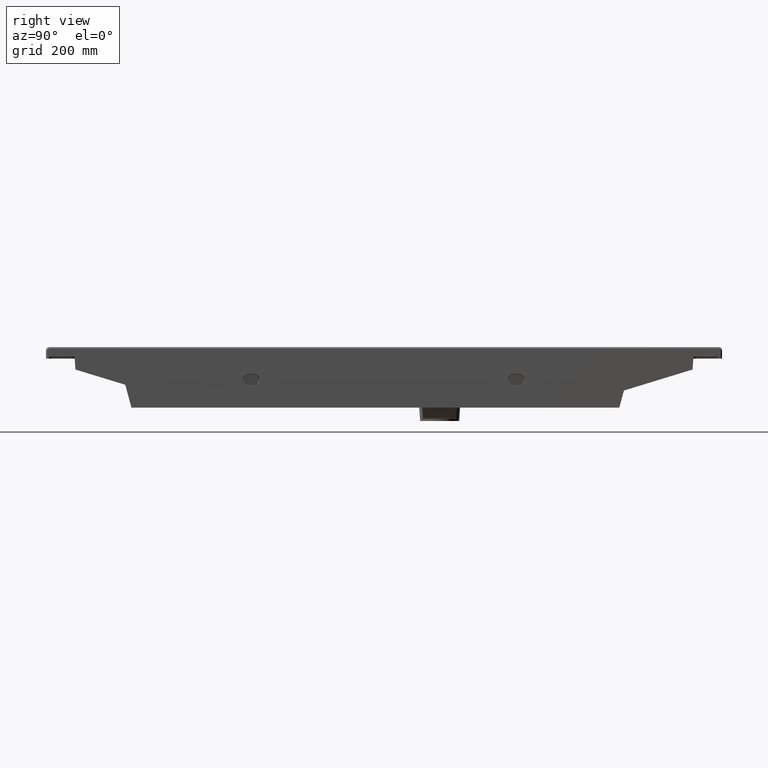
[diagram: clean part render]
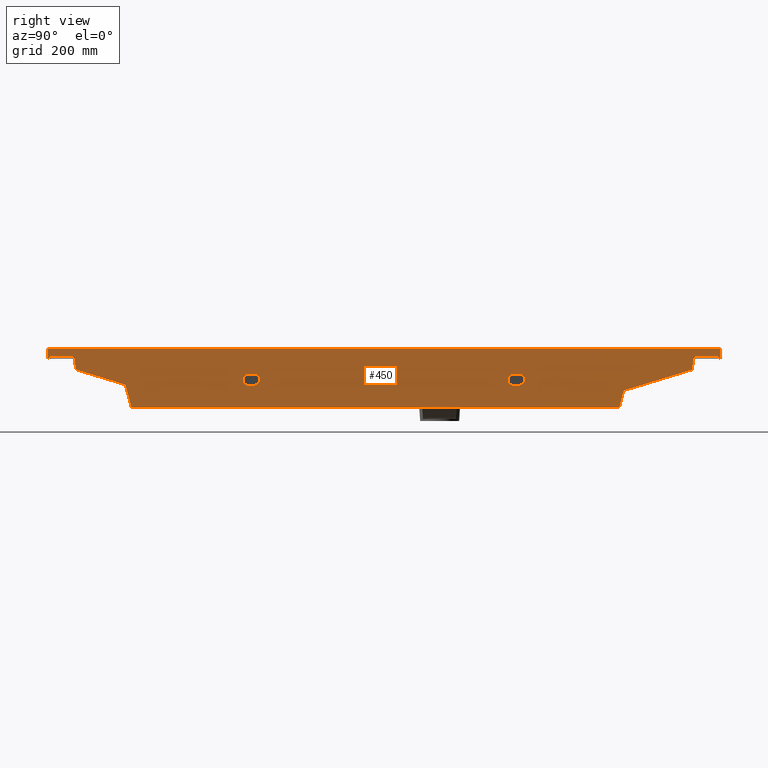
[diagram: same view with one face highlighted and labeled with its STEP entity id]
A machine part, right view. The second image highlights one B-rep face of the part: STEP entity #450.
In plain terms, the highlighted face is a freeform B-spline surface patch.
Its self-contained STEP definition (entity closure, byte-faithful):
#227=B_SPLINE_SURFACE_WITH_KNOTS('',3,3,((#4912,#4913,#4914,#4915),(#4916,
#4917,#4918,#4919),(#4920,#4921,#4922,#4923),(#4924,#4925,#4926,#4927)),
 .UNSPECIFIED.,.F.,.F.,.F.,(4,4),(4,4),(0.,1.),(0.,1.),.UNSPECIFIED.);
#450=ADVANCED_FACE('',(#639,#640,#641),#227,.T.);
#639=FACE_BOUND('',#712,.T.);
#640=FACE_BOUND('',#713,.T.);
#641=FACE_BOUND('',#714,.T.);
#712=EDGE_LOOP('',(#1288,#1289,#1290,#1291,#1292,#1293,#1294,#1295,#1296,
#1297,#1298,#1299,#1300,#1301,#1302,#1303,#1304,#1305,#1306,#1307,#1308,
#1309));
#713=EDGE_LOOP('',(#1310,#1311,#1312,#1313));
#714=EDGE_LOOP('',(#1314,#1315,#1316,#1317));
#840=B_SPLINE_CURVE_WITH_KNOTS('',3,(#3313,#3314,#3315,#3316),
 .UNSPECIFIED.,.F.,.F.,(4,4),(0.,1.),.UNSPECIFIED.);
#848=B_SPLINE_CURVE_WITH_KNOTS('',3,(#3425,#3426,#3427,#3428),
 .UNSPECIFIED.,.F.,.F.,(4,4),(0.,1.),.UNSPECIFIED.);
#860=B_SPLINE_CURVE_WITH_KNOTS('',3,(#3553,#3554,#3555,#3556,#3557,#3558,
#3559,#3560,#3561,#3562),.UNSPECIFIED.,.F.,.F.,(4,2,2,2,4),(0.,0.25,0.5,
0.75,1.),.UNSPECIFIED.);
#861=B_SPLINE_CURVE_WITH_KNOTS('',3,(#3572,#3573,#3574,#3575,#3576,#3577,
#3578),.UNSPECIFIED.,.F.,.F.,(4,3,4),(0.,0.500000000000011,1.),
 .UNSPECIFIED.);
#862=B_SPLINE_CURVE_WITH_KNOTS('',3,(#3582,#3583,#3584,#3585,#3586,#3587,
#3588,#3589,#3590,#3591),.UNSPECIFIED.,.F.,.F.,(4,2,2,2,4),(0.,0.25,0.500000000000001,
0.75,1.),.UNSPECIFIED.);
#863=B_SPLINE_CURVE_WITH_KNOTS('',3,(#3601,#3602,#3603,#3604,#3605,#3606,
#3607),.UNSPECIFIED.,.F.,.F.,(4,3,4),(0.,0.499999999999983,1.),
 .UNSPECIFIED.);
#866=B_SPLINE_CURVE_WITH_KNOTS('',3,(#3653,#3654,#3655,#3656),
 .UNSPECIFIED.,.F.,.F.,(4,4),(0.,1.),.UNSPECIFIED.);
#869=B_SPLINE_CURVE_WITH_KNOTS('',3,(#3672,#3673,#3674,#3675),
 .UNSPECIFIED.,.F.,.F.,(4,4),(0.,1.),.UNSPECIFIED.);
#888=B_SPLINE_CURVE_WITH_KNOTS('',3,(#4025,#4026,#4027,#4028,#4029,#4030,
#4031),.UNSPECIFIED.,.F.,.F.,(4,3,4),(0.,0.488515722123736,1.),
 .UNSPECIFIED.);
#906=B_SPLINE_CURVE_WITH_KNOTS('',3,(#4269,#4270,#4271,#4272,#4273,#4274,
#4275),.UNSPECIFIED.,.F.,.F.,(4,3,4),(0.,0.487471422957447,1.),
 .UNSPECIFIED.);
#907=B_SPLINE_CURVE_WITH_KNOTS('',3,(#4288,#4289,#4290,#4291,#4292,#4293,
#4294),.UNSPECIFIED.,.F.,.F.,(4,3,4),(0.,0.512528577394349,1.),
 .UNSPECIFIED.);
#932=B_SPLINE_CURVE_WITH_KNOTS('',3,(#4649,#4650,#4651,#4652),
 .UNSPECIFIED.,.F.,.F.,(4,4),(0.,1.),.UNSPECIFIED.);
#936=B_SPLINE_CURVE_WITH_KNOTS('',3,(#4702,#4703,#4704,#4705,#4706,#4707,
#4708),.UNSPECIFIED.,.F.,.F.,(4,3,4),(0.,0.399994232879755,1.),
 .UNSPECIFIED.);
#937=B_SPLINE_CURVE_WITH_KNOTS('',3,(#4710,#4711,#4712,#4713,#4714,#4715,
#4716,#4717,#4718,#4719,#4720,#4721,#4722,#4723,#4724,#4725),
 .UNSPECIFIED.,.F.,.F.,(4,3,3,3,3,4),(0.,0.214940545334537,0.429881090683832,
0.644821635798407,0.859762180407643,1.),.UNSPECIFIED.);
#938=B_SPLINE_CURVE_WITH_KNOTS('',3,(#4727,#4728,#4729,#4730,#4731,#4732,
#4733,#4734,#4735,#4736,#4737,#4738,#4739,#4740,#4741,#4742),
 .UNSPECIFIED.,.F.,.F.,(4,3,3,3,3,4),(0.,0.00499081544996495,0.0249540772498247,
0.104807124449264,0.42421931324702,1.),.UNSPECIFIED.);
#939=B_SPLINE_CURVE_WITH_KNOTS('',3,(#4744,#4745,#4746,#4747,#4748,#4749,
#4750,#4751,#4752,#4753,#4754,#4755,#4756,#4757,#4758,#4759),
 .UNSPECIFIED.,.F.,.F.,(4,3,3,3,3,4),(0.,0.214940544026423,0.429881088038044,
0.644821632284398,0.859762177036083,1.),.UNSPECIFIED.);
#940=B_SPLINE_CURVE_WITH_KNOTS('',3,(#4761,#4762,#4763,#4764,#4765,#4766,
#4767),.UNSPECIFIED.,.F.,.F.,(4,3,4),(0.,0.399994232879754,1.),
 .UNSPECIFIED.);
#941=B_SPLINE_CURVE_WITH_KNOTS('',3,(#4768,#4769,#4770,#4771,#4772,#4773,
#4774,#4775,#4776,#4777,#4778,#4779,#4780,#4781,#4782,#4783),
 .UNSPECIFIED.,.F.,.F.,(4,3,3,3,3,4),(0.,0.227574531575097,0.45514906315938,
0.682723594584448,0.910298125508705,1.),.UNSPECIFIED.);
#942=B_SPLINE_CURVE_WITH_KNOTS('',3,(#4784,#4785,#4786,#4787,#4788,#4789,
#4790,#4791,#4792,#4793,#4794,#4795,#4796,#4797,#4798,#4799),
 .UNSPECIFIED.,.F.,.F.,(4,3,3,3,3,4),(0.,0.22493801690343,0.449876033791416,
0.674814050925029,0.899752068587476,1.),.UNSPECIFIED.);
#943=B_SPLINE_CURVE_WITH_KNOTS('',3,(#4801,#4802,#4803,#4804,#4805,#4806,
#4807),.UNSPECIFIED.,.F.,.F.,(4,3,4),(0.,0.406023384226264,1.),
 .UNSPECIFIED.);
#944=B_SPLINE_CURVE_WITH_KNOTS('',3,(#4809,#4810,#4811,#4812,#4813,#4814,
#4815),.UNSPECIFIED.,.F.,.F.,(4,3,4),(0.,0.406544752498143,1.),
 .UNSPECIFIED.);
#945=B_SPLINE_CURVE_WITH_KNOTS('',3,(#4817,#4818,#4819,#4820,#4821,#4822,
#4823),.UNSPECIFIED.,.F.,.F.,(4,3,4),(0.,0.500006351623453,1.),
 .UNSPECIFIED.);
#946=B_SPLINE_CURVE_WITH_KNOTS('',3,(#4824,#4825,#4826,#4827,#4828,#4829,
#4830),.UNSPECIFIED.,.F.,.F.,(4,3,4),(0.,0.499991523264634,1.),
 .UNSPECIFIED.);
#947=B_SPLINE_CURVE_WITH_KNOTS('',3,(#4832,#4833,#4834,#4835,#4836,#4837,
#4838,#4839,#4840,#4841),.UNSPECIFIED.,.F.,.F.,(4,3,3,4),(0.,0.222545476930106,
0.5934554680145,1.),.UNSPECIFIED.);
#948=B_SPLINE_CURVE_WITH_KNOTS('',3,(#4842,#4843,#4844,#4845,#4846,#4847,
#4848,#4849,#4850,#4851,#4852,#4853,#4854,#4855,#4856,#4857),
 .UNSPECIFIED.,.F.,.F.,(4,3,3,3,3,4),(0.,0.224938018206358,0.449876036431116,
0.674814054369482,0.899752071765122,1.),.UNSPECIFIED.);
#949=B_SPLINE_CURVE_WITH_KNOTS('',3,(#4858,#4859,#4860,#4861,#4862,#4863,
#4864,#4865,#4866,#4867,#4868,#4869,#4870,#4871,#4872,#4873),
 .UNSPECIFIED.,.F.,.F.,(4,3,3,3,3,4),(0.,0.227574530292882,0.455149060560492,
0.682723591209023,0.910298122428115,1.),.UNSPECIFIED.);
#950=B_SPLINE_CURVE_WITH_KNOTS('',3,(#4874,#4875,#4876,#4877,#4878,#4879,
#4880),.UNSPECIFIED.,.F.,.F.,(4,3,4),(0.,0.500000000000017,1.),
 .UNSPECIFIED.);
#951=B_SPLINE_CURVE_WITH_KNOTS('',3,(#4883,#4884,#4885,#4886,#4887,#4888,
#4889,#4890,#4891,#4892),.UNSPECIFIED.,.F.,.F.,(4,2,2,2,4),(0.,0.25,0.5,
0.75,1.),.UNSPECIFIED.);
#952=B_SPLINE_CURVE_WITH_KNOTS('',3,(#4894,#4895,#4896,#4897,#4898,#4899,
#4900),.UNSPECIFIED.,.F.,.F.,(4,3,4),(0.,0.499999999999999,1.),
 .UNSPECIFIED.);
#953=B_SPLINE_CURVE_WITH_KNOTS('',3,(#4902,#4903,#4904,#4905,#4906,#4907,
#4908,#4909,#4910,#4911),.UNSPECIFIED.,.F.,.F.,(4,2,2,2,4),(0.,0.25,0.499999999999999,
0.75,1.),.UNSPECIFIED.);
#1288=ORIENTED_EDGE('',*,*,#2090,.T.);
#1289=ORIENTED_EDGE('',*,*,#2227,.T.);
#1290=ORIENTED_EDGE('',*,*,#2228,.T.);
#1291=ORIENTED_EDGE('',*,*,#2229,.T.);
#1292=ORIENTED_EDGE('',*,*,#2230,.T.);
#1293=ORIENTED_EDGE('',*,*,#2231,.T.);
#1294=ORIENTED_EDGE('',*,*,#2094,.T.);
#1295=ORIENTED_EDGE('',*,*,#2058,.F.);
#1296=ORIENTED_EDGE('',*,*,#2232,.T.);
#1297=ORIENTED_EDGE('',*,*,#2167,.T.);
#1298=ORIENTED_EDGE('',*,*,#2233,.T.);
#1299=ORIENTED_EDGE('',*,*,#2234,.T.);
#1300=ORIENTED_EDGE('',*,*,#2235,.F.);
#1301=ORIENTED_EDGE('',*,*,#2236,.F.);
#1302=ORIENTED_EDGE('',*,*,#2208,.F.);
#1303=ORIENTED_EDGE('',*,*,#2237,.F.);
#1304=ORIENTED_EDGE('',*,*,#2238,.F.);
#1305=ORIENTED_EDGE('',*,*,#2135,.T.);
#1306=ORIENTED_EDGE('',*,*,#2239,.T.);
#1307=ORIENTED_EDGE('',*,*,#2161,.T.);
#1308=ORIENTED_EDGE('',*,*,#2240,.T.);
#1309=ORIENTED_EDGE('',*,*,#2050,.F.);
#1310=ORIENTED_EDGE('',*,*,#2084,.F.);
#1311=ORIENTED_EDGE('',*,*,#2082,.F.);
#1312=ORIENTED_EDGE('',*,*,#2080,.F.);
#1313=ORIENTED_EDGE('',*,*,#2078,.F.);
#1314=ORIENTED_EDGE('',*,*,#2241,.T.);
#1315=ORIENTED_EDGE('',*,*,#2242,.T.);
#1316=ORIENTED_EDGE('',*,*,#2243,.T.);
#1317=ORIENTED_EDGE('',*,*,#2244,.T.);
#1805=VERTEX_POINT('',#3317);
#1806=VERTEX_POINT('',#3318);
#1813=VERTEX_POINT('',#3424);
#1814=VERTEX_POINT('',#3429);
#1831=VERTEX_POINT('',#3552);
#1832=VERTEX_POINT('',#3563);
#1833=VERTEX_POINT('',#3579);
#1834=VERTEX_POINT('',#3592);
#1839=VERTEX_POINT('',#3652);
#1842=VERTEX_POINT('',#3676);
#1872=VERTEX_POINT('',#4024);
#1873=VERTEX_POINT('',#4032);
#1896=VERTEX_POINT('',#4276);
#1897=VERTEX_POINT('',#4277);
#1902=VERTEX_POINT('',#4287);
#1903=VERTEX_POINT('',#4295);
#1932=VERTEX_POINT('',#4653);
#1933=VERTEX_POINT('',#4654);
#1949=VERTEX_POINT('',#4709);
#1950=VERTEX_POINT('',#4726);
#1951=VERTEX_POINT('',#4743);
#1952=VERTEX_POINT('',#4760);
#1953=VERTEX_POINT('',#4800);
#1954=VERTEX_POINT('',#4808);
#1955=VERTEX_POINT('',#4816);
#1956=VERTEX_POINT('',#4831);
#1957=VERTEX_POINT('',#4881);
#1958=VERTEX_POINT('',#4882);
#1959=VERTEX_POINT('',#4893);
#1960=VERTEX_POINT('',#4901);
#2050=EDGE_CURVE('',#1805,#1806,#840,.T.);
#2058=EDGE_CURVE('',#1813,#1814,#848,.T.);
#2078=EDGE_CURVE('',#1831,#1832,#860,.T.);
#2080=EDGE_CURVE('',#1832,#1833,#861,.T.);
#2082=EDGE_CURVE('',#1833,#1834,#862,.T.);
#2084=EDGE_CURVE('',#1834,#1831,#863,.T.);
#2090=EDGE_CURVE('',#1805,#1839,#866,.T.);
#2094=EDGE_CURVE('',#1842,#1814,#869,.T.);
#2135=EDGE_CURVE('',#1873,#1872,#888,.T.);
#2161=EDGE_CURVE('',#1896,#1897,#906,.T.);
#2167=EDGE_CURVE('',#1903,#1902,#907,.T.);
#2208=EDGE_CURVE('',#1932,#1933,#932,.T.);
#2227=EDGE_CURVE('',#1839,#1949,#936,.T.);
#2228=EDGE_CURVE('',#1949,#1950,#937,.T.);
#2229=EDGE_CURVE('',#1950,#1951,#938,.T.);
#2230=EDGE_CURVE('',#1951,#1952,#939,.T.);
#2231=EDGE_CURVE('',#1952,#1842,#940,.T.);
#2232=EDGE_CURVE('',#1813,#1903,#941,.T.);
#2233=EDGE_CURVE('',#1902,#1953,#942,.T.);
#2234=EDGE_CURVE('',#1953,#1954,#943,.T.);
#2235=EDGE_CURVE('',#1955,#1954,#944,.T.);
#2236=EDGE_CURVE('',#1933,#1955,#945,.T.);
#2237=EDGE_CURVE('',#1956,#1932,#946,.T.);
#2238=EDGE_CURVE('',#1873,#1956,#947,.T.);
#2239=EDGE_CURVE('',#1872,#1896,#948,.T.);
#2240=EDGE_CURVE('',#1897,#1806,#949,.T.);
#2241=EDGE_CURVE('',#1957,#1958,#950,.T.);
#2242=EDGE_CURVE('',#1958,#1959,#951,.T.);
#2243=EDGE_CURVE('',#1959,#1960,#952,.T.);
#2244=EDGE_CURVE('',#1960,#1957,#953,.T.);
#3313=CARTESIAN_POINT('',(241.133348472529,622.842022748388,-21.0030697127266));
#3314=CARTESIAN_POINT('',(241.133333736482,622.805234685412,-20.582580231054));
#3315=CARTESIAN_POINT('',(241.133319000436,622.768446622428,-20.1620907493822));
#3316=CARTESIAN_POINT('',(241.13330426439,622.731658559452,-19.7416012677097));
#3317=CARTESIAN_POINT('',(241.133348472529,622.842022748388,-21.0030697127266));
#3318=CARTESIAN_POINT('',(241.13330426439,622.731658559452,-19.7416012677097));
#3424=CARTESIAN_POINT('',(241.133304264389,-580.731658587715,-19.7416012677104));
#3425=CARTESIAN_POINT('',(241.133304264389,-580.731658587715,-19.7416012677104));
#3426=CARTESIAN_POINT('',(241.133319000436,-580.768446650691,-20.1620907493825));
#3427=CARTESIAN_POINT('',(241.133333736482,-580.805234713668,-20.5825802310545));
#3428=CARTESIAN_POINT('',(241.133348472529,-580.842022776645,-21.0030697127266));
#3429=CARTESIAN_POINT('',(241.133348472529,-580.842022776645,-21.0030697127266));
#3552=CARTESIAN_POINT('',(241.134322750179,253.732961788461,-48.8038443527653));
#3553=CARTESIAN_POINT('',(241.134322750179,253.732961788461,-48.8038443527651));
#3554=CARTESIAN_POINT('',(241.134322750179,251.115187315969,-48.8038443527652));
#3555=CARTESIAN_POINT('',(241.134360738659,248.508799760759,-49.8878363461886));
#3556=CARTESIAN_POINT('',(241.134489786489,244.822526086824,-53.5701846460747));
#3557=CARTESIAN_POINT('',(241.134581868866,243.73066002745,-56.1977327495517));
#3558=CARTESIAN_POINT('',(241.134765149349,243.735271323845,-61.4275965564175));
#3559=CARTESIAN_POINT('',(241.134856528148,244.820939896964,-64.0350682301224));
#3560=CARTESIAN_POINT('',(241.134985631852,248.507093673735,-67.7190108855396));
#3561=CARTESIAN_POINT('',(241.135023650036,251.104581740064,-68.8038504694256));
#3562=CARTESIAN_POINT('',(241.135023650036,253.732961788462,-68.8038504694256));
#3563=CARTESIAN_POINT('',(241.135023650036,253.732961788462,-68.8038504694255));
#3572=CARTESIAN_POINT('',(241.135023650036,253.732961788462,-68.8038504694255));
#3573=CARTESIAN_POINT('',(241.135023650036,255.399628455129,-68.8038504694255));
#3574=CARTESIAN_POINT('',(241.135023650036,257.066295121796,-68.8038504694257));
#3575=CARTESIAN_POINT('',(241.135023650036,258.732961788464,-68.8038504694257));
#3576=CARTESIAN_POINT('',(241.135023650036,260.399628455131,-68.8038504694257));
#3577=CARTESIAN_POINT('',(241.135023650036,262.066295121798,-68.8038504694248));
#3578=CARTESIAN_POINT('',(241.135023650036,263.732961788466,-68.8038504694248));
#3579=CARTESIAN_POINT('',(241.135023650036,263.732961788466,-68.8038504694248));
#3582=CARTESIAN_POINT('',(241.135023650036,263.732961788466,-68.8038504694248));
#3583=CARTESIAN_POINT('',(241.135023650036,266.375312665694,-68.8038504694077));
#3584=CARTESIAN_POINT('',(241.134985660716,268.959177293844,-67.7198345132099));
#3585=CARTESIAN_POINT('',(241.13485634191,272.649128180349,-64.0297539799476));
#3586=CARTESIAN_POINT('',(241.134764847068,273.73119695109,-61.4189710250983));
#3587=CARTESIAN_POINT('',(241.134582026767,273.734722059714,-56.2022384249084));
#3588=CARTESIAN_POINT('',(241.134491036191,272.674355646937,-53.6058445759454));
#3589=CARTESIAN_POINT('',(241.134360116453,268.94406749777,-49.8700818452978));
#3590=CARTESIAN_POINT('',(241.134322750179,266.375312665463,-48.8038443527644));
#3591=CARTESIAN_POINT('',(241.134322750179,263.732961788466,-48.8038443527644));
#3592=CARTESIAN_POINT('',(241.134322750179,263.732961788466,-48.8038443527644));
#3601=CARTESIAN_POINT('',(241.134322750179,263.732961788466,-48.8038443527644));
#3602=CARTESIAN_POINT('',(241.134322750179,262.066295121798,-48.8038443527644));
#3603=CARTESIAN_POINT('',(241.134322750179,260.399628455131,-48.8038443527653));
#3604=CARTESIAN_POINT('',(241.134322750179,258.732961788464,-48.8038443527653));
#3605=CARTESIAN_POINT('',(241.134322750179,257.066295121796,-48.8038443527653));
#3606=CARTESIAN_POINT('',(241.134322750179,255.399628455129,-48.8038443527653));
#3607=CARTESIAN_POINT('',(241.134322750179,253.732961788461,-48.8038443527653));
#3652=CARTESIAN_POINT('',(241.133348472529,625.104174272977,-21.0030697127266));
#3653=CARTESIAN_POINT('',(241.133348472529,622.842022748388,-21.0030697127266));
#3654=CARTESIAN_POINT('',(241.133348472529,623.596073256584,-21.0030697127266));
#3655=CARTESIAN_POINT('',(241.133348472529,624.350123764781,-21.0030697127266));
#3656=CARTESIAN_POINT('',(241.133348472529,625.104174272977,-21.0030697127266));
#3672=CARTESIAN_POINT('',(241.133348472529,-583.10417427298,-21.0030697127266));
#3673=CARTESIAN_POINT('',(241.133348472529,-582.350123774201,-21.0030697127266));
#3674=CARTESIAN_POINT('',(241.133348472529,-581.596073275423,-21.0030697127266));
#3675=CARTESIAN_POINT('',(241.133348472529,-580.842022776645,-21.0030697127266));
#3676=CARTESIAN_POINT('',(241.133348472529,-583.10417427298,-21.0030697127266));
#4024=CARTESIAN_POINT('',(241.133338694028,576.597055459965,-20.7240426010663));
#4025=CARTESIAN_POINT('',(241.134032595303,575.21248337745,-40.5243458856348));
#4026=CARTESIAN_POINT('',(241.133919601409,575.437945121024,-37.3000927331914));
#4027=CARTESIAN_POINT('',(241.133806607515,575.663406864598,-34.0758395807481));
#4028=CARTESIAN_POINT('',(241.133693613621,575.888868608172,-30.8515864283048));
#4029=CARTESIAN_POINT('',(241.13357530709,576.124930892103,-27.475738485892));
#4030=CARTESIAN_POINT('',(241.133457000559,576.360993176034,-24.0998905434791));
#4031=CARTESIAN_POINT('',(241.133338694028,576.597055459965,-20.7240426010663));
#4032=CARTESIAN_POINT('',(241.134032595303,575.21248337745,-40.5243458856348));
#4269=CARTESIAN_POINT('',(241.133208292557,580.587311660993,-17.0030684893945));
#4270=CARTESIAN_POINT('',(241.133208292557,586.949750130779,-17.0030684893945));
#4271=CARTESIAN_POINT('',(241.133208292557,593.312188600566,-17.0030684893945));
#4272=CARTESIAN_POINT('',(241.133208292557,599.674627070352,-17.0030684893945));
#4273=CARTESIAN_POINT('',(241.133208292557,606.364109534076,-17.0030684893945));
#4274=CARTESIAN_POINT('',(241.133208292557,613.053591997801,-17.0030684893945));
#4275=CARTESIAN_POINT('',(241.133208292557,619.743074461525,-17.0030684893945));
#4276=CARTESIAN_POINT('',(241.133208292557,580.587311660993,-17.0030684893945));
#4277=CARTESIAN_POINT('',(241.133208292557,619.743074461525,-17.0030684893945));
#4287=CARTESIAN_POINT('',(241.133208292557,-538.587311660996,-17.0030684893945));
#4288=CARTESIAN_POINT('',(241.133208292557,-577.743074489786,-17.0030684893945));
#4289=CARTESIAN_POINT('',(241.133208292557,-571.053592016642,-17.0030684893945));
#4290=CARTESIAN_POINT('',(241.133208292557,-564.364109543499,-17.0030684893945));
#4291=CARTESIAN_POINT('',(241.133208292557,-557.674627070355,-17.0030684893945));
#4292=CARTESIAN_POINT('',(241.133208292557,-551.312188600569,-17.0030684893945));
#4293=CARTESIAN_POINT('',(241.133208292557,-544.949750130782,-17.0030684893945));
#4294=CARTESIAN_POINT('',(241.133208292557,-538.587311660996,-17.0030684893945));
#4295=CARTESIAN_POINT('',(241.133208292557,-577.743074489786,-17.0030684893945));
#4649=CARTESIAN_POINT('',(241.136432431899,443.708334198686,-109.003096626033));
#4650=CARTESIAN_POINT('',(241.136432431899,151.588873204116,-109.003096626033));
#4651=CARTESIAN_POINT('',(241.136432431899,-140.530587790455,-109.003096626033));
#4652=CARTESIAN_POINT('',(241.136432431899,-432.650048785026,-109.003096626033));
#4653=CARTESIAN_POINT('',(241.136432431899,443.708334198686,-109.003096626033));
#4654=CARTESIAN_POINT('',(241.136432431899,-432.650048785026,-109.003096626033));
#4702=CARTESIAN_POINT('',(241.133348472529,625.104174272977,-21.0030697127266));
#4703=CARTESIAN_POINT('',(241.133278382564,625.104174272977,-19.0030697139547));
#4704=CARTESIAN_POINT('',(241.1332082926,625.104174272977,-17.0030697151829));
#4705=CARTESIAN_POINT('',(241.133138202636,625.104174272977,-15.003069716411));
#4706=CARTESIAN_POINT('',(241.133033065163,625.104174272977,-12.0029976282108));
#4707=CARTESIAN_POINT('',(241.132927927691,625.104174272977,-9.00292554001067));
#4708=CARTESIAN_POINT('',(241.132822790218,625.104174272977,-6.0028534518105));
#4709=CARTESIAN_POINT('',(241.132822790218,625.104174272977,-6.0028534518105));
#4710=CARTESIAN_POINT('',(241.132822790218,625.104174272977,-6.0028534518105));
#4711=CARTESIAN_POINT('',(241.132811023116,625.104174272977,-5.66708207860506));
#4712=CARTESIAN_POINT('',(241.132799093739,625.046202852823,-5.32668021087656));
#4713=CARTESIAN_POINT('',(241.132787989963,624.935060650977,-5.00983667528175));
#4714=CARTESIAN_POINT('',(241.132776886187,624.823918449126,-4.69299313967484));
#4715=CARTESIAN_POINT('',(241.132766301756,624.656540026412,-4.3909690002801));
#4716=CARTESIAN_POINT('',(241.132757113172,624.446786062727,-4.1287750075092));
#4717=CARTESIAN_POINT('',(241.132747924589,624.237032099273,-3.86658101502824));
#4718=CARTESIAN_POINT('',(241.132739878419,623.979117321622,-3.63698553502883));
#4719=CARTESIAN_POINT('',(241.132733640971,623.69439976466,-3.45900146922279));
#4720=CARTESIAN_POINT('',(241.132727403522,623.409682208361,-3.28101740383071));
#4721=CARTESIAN_POINT('',(241.132722802758,623.090309011109,-3.14973573210593));
#4722=CARTESIAN_POINT('',(241.13272021967,622.762727606308,-3.0760279464972));
#4723=CARTESIAN_POINT('',(241.132718520528,622.547246186812,-3.02754333156454));
#4724=CARTESIAN_POINT('',(241.132717655271,622.325043012358,-3.00285344631328));
#4725=CARTESIAN_POINT('',(241.132717655271,622.104174272977,-3.00285344631327));
#4726=CARTESIAN_POINT('',(241.132717655271,622.104174272976,-3.00285344631327));
#4727=CARTESIAN_POINT('',(241.132717655271,622.104174272976,-3.00285344631327));
#4728=CARTESIAN_POINT('',(241.132717655271,620.104174272976,-3.00285344631327));
#4729=CARTESIAN_POINT('',(241.132717655271,618.104174272976,-3.00285344631327));
#4730=CARTESIAN_POINT('',(241.132717655271,616.104174272976,-3.00285344631327));
#4731=CARTESIAN_POINT('',(241.132717655271,608.104174272976,-3.00285344631327));
#4732=CARTESIAN_POINT('',(241.132717655271,600.104174272977,-3.00285344631327));
#4733=CARTESIAN_POINT('',(241.132717655271,592.104174272977,-3.00285344631327));
#4734=CARTESIAN_POINT('',(241.132717655271,560.104174272977,-3.00285344631327));
#4735=CARTESIAN_POINT('',(241.132717655271,528.104174272976,-3.00285344631327));
#4736=CARTESIAN_POINT('',(241.132717655271,496.104174272977,-3.00285344631327));
#4737=CARTESIAN_POINT('',(241.132717655271,368.104174272977,-3.00285344631327));
#4738=CARTESIAN_POINT('',(241.132717655271,240.104174272977,-3.00285344631327));
#4739=CARTESIAN_POINT('',(241.132717655271,112.104174272977,-3.00285344631327));
#4740=CARTESIAN_POINT('',(241.132717655271,-118.631941909009,-3.00285344631327));
#4741=CARTESIAN_POINT('',(241.132717655271,-349.368058090994,-3.00285344631327));
#4742=CARTESIAN_POINT('',(241.132717655271,-580.10417427298,-3.00285344631327));
#4743=CARTESIAN_POINT('',(241.132717655271,-580.10417427298,-3.00285344631327));
#4744=CARTESIAN_POINT('',(241.132717655271,-580.10417427298,-3.00285344631327));
#4745=CARTESIAN_POINT('',(241.132717655271,-580.439945644347,-3.00285344631327));
#4746=CARTESIAN_POINT('',(241.132719686879,-580.780347510211,-3.06082486616713));
#4747=CARTESIAN_POINT('',(241.132723581855,-581.097191044045,-3.17196706734484));
#4748=CARTESIAN_POINT('',(241.132727476832,-581.414034577866,-3.28310926851828));
#4749=CARTESIAN_POINT('',(241.132733342605,-581.716058715515,-3.45048769013106));
#4750=CARTESIAN_POINT('',(241.132740693429,-581.978252706948,-3.66024165224835));
#4751=CARTESIAN_POINT('',(241.132748044253,-582.24044669867,-3.8699956145976));
#4752=CARTESIAN_POINT('',(241.132757082872,-582.470042178093,-4.12791039077884));
#4753=CARTESIAN_POINT('',(241.132767060793,-582.648026243928,-4.41262794605077));
#4754=CARTESIAN_POINT('',(241.132777038715,-582.826010310177,-4.69734550198491));
#4755=CARTESIAN_POINT('',(241.132788231143,-582.957291982891,-5.01671869883609));
#4756=CARTESIAN_POINT('',(241.132799711228,-583.030999769807,-5.34430010339282));
#4757=CARTESIAN_POINT('',(241.13280726277,-583.079484386716,-5.55978152769017));
#4758=CARTESIAN_POINT('',(241.132815049877,-583.10417427298,-5.78198470732381));
#4759=CARTESIAN_POINT('',(241.132822790218,-583.10417427298,-6.0028534518105));
#4760=CARTESIAN_POINT('',(241.132822790218,-583.10417427298,-6.0028534518105));
#4761=CARTESIAN_POINT('',(241.132822790218,-583.10417427298,-6.0028534518105));
#4762=CARTESIAN_POINT('',(241.132892880182,-583.10417427298,-8.00285345058235));
#4763=CARTESIAN_POINT('',(241.132962970146,-583.10417427298,-10.0028534493542));
#4764=CARTESIAN_POINT('',(241.133033060111,-583.10417427298,-12.002853448126));
#4765=CARTESIAN_POINT('',(241.133138197583,-583.10417427298,-15.0029255363262));
#4766=CARTESIAN_POINT('',(241.133243335056,-583.10417427298,-18.0029976245264));
#4767=CARTESIAN_POINT('',(241.133348472529,-583.10417427298,-21.0030697127266));
#4768=CARTESIAN_POINT('',(241.133304264389,-580.731658587715,-19.7416012677104));
#4769=CARTESIAN_POINT('',(241.133292542065,-580.702394184115,-19.407107605758));
#4770=CARTESIAN_POINT('',(241.133280835149,-580.614975384863,-19.0730536119192));
#4771=CARTESIAN_POINT('',(241.133270113096,-580.476641378724,-18.7671024426577));
#4772=CARTESIAN_POINT('',(241.133259391042,-580.338307372583,-18.4611512733897));
#4773=CARTESIAN_POINT('',(241.133249358125,-580.145242736852,-18.1748644176894));
#4774=CARTESIAN_POINT('',(241.133240845173,-579.913435237907,-17.9319494146397));
#4775=CARTESIAN_POINT('',(241.133232332221,-579.681627739128,-17.6890344117655));
#4776=CARTESIAN_POINT('',(241.133225104437,-579.404683840136,-17.4827913657651));
#4777=CARTESIAN_POINT('',(241.133219760357,-579.105537385637,-17.3302993531365));
#4778=CARTESIAN_POINT('',(241.133214416277,-578.806390931791,-17.1778073408412));
#4779=CARTESIAN_POINT('',(241.133210808505,-578.476791093953,-17.0748604436984));
#4780=CARTESIAN_POINT('',(241.133209235802,-578.1440321781,-17.0299837391803));
#4781=CARTESIAN_POINT('',(241.133208608384,-578.011280624594,-17.0120805307096));
#4782=CARTESIAN_POINT('',(241.133208292557,-577.877027839248,-17.0030684893945));
#4783=CARTESIAN_POINT('',(241.133208292557,-577.743074489786,-17.0030684893945));
#4784=CARTESIAN_POINT('',(241.133208292557,-538.587311660996,-17.0030684893945));
#4785=CARTESIAN_POINT('',(241.133208292557,-538.139616499172,-17.0030684893945));
#4786=CARTESIAN_POINT('',(241.133211001367,-537.685747344687,-17.0803637158663));
#4787=CARTESIAN_POINT('',(241.133216194669,-537.263289299576,-17.2285533174365));
#4788=CARTESIAN_POINT('',(241.133221387971,-536.84083125448,-17.3767429190011));
#4789=CARTESIAN_POINT('',(241.133229209003,-536.438132404282,-17.599914147818));
#4790=CARTESIAN_POINT('',(241.133239010101,-536.088540415705,-17.8795860973077));
#4791=CARTESIAN_POINT('',(241.1332488112,-535.738948426742,-18.1592580471067));
#4792=CARTESIAN_POINT('',(241.133260862691,-535.432821120844,-18.5031444153483));
#4793=CARTESIAN_POINT('',(241.133274166587,-535.195509033064,-18.8827678223775));
#4794=CARTESIAN_POINT('',(241.133287470482,-534.958196944732,-19.2623912302896));
#4795=CARTESIAN_POINT('',(241.13330239372,-534.783154714447,-19.6882221594246));
#4796=CARTESIAN_POINT('',(241.133317700499,-534.684877665226,-20.1249973655002));
#4797=CARTESIAN_POINT('',(241.133324600631,-534.640575425052,-20.3218909457925));
#4798=CARTESIAN_POINT('',(241.133331638613,-534.611133445001,-20.5227180353024));
#4799=CARTESIAN_POINT('',(241.133338694029,-534.597055459968,-20.7240426010664));
#4800=CARTESIAN_POINT('',(241.133338694029,-534.597055459968,-20.7240426010664));
#4801=CARTESIAN_POINT('',(241.133338694029,-534.597055459968,-20.7240426010664));
#4802=CARTESIAN_POINT('',(241.13343260741,-534.409665912458,-23.40383798328));
#4803=CARTESIAN_POINT('',(241.133526520791,-534.222276364947,-26.0836333654937));
#4804=CARTESIAN_POINT('',(241.133620434172,-534.034886817437,-28.7634287477073));
#4805=CARTESIAN_POINT('',(241.133757821216,-533.760752337538,-32.6837344589821));
#4806=CARTESIAN_POINT('',(241.13389520826,-533.486617857639,-36.6040401702569));
#4807=CARTESIAN_POINT('',(241.134032595303,-533.21248337774,-40.5243458815316));
#4808=CARTESIAN_POINT('',(241.134032595303,-533.21248337774,-40.5243458815316));
#4809=CARTESIAN_POINT('',(241.13499205821,-443.662951140867,-67.9023854467596));
#4810=CARTESIAN_POINT('',(241.134862036674,-455.798248614055,-64.1922526737829));
#4811=CARTESIAN_POINT('',(241.134732015137,-467.933546087243,-60.4821199008063));
#4812=CARTESIAN_POINT('',(241.1346019936,-480.068843560431,-56.7719871278296));
#4813=CARTESIAN_POINT('',(241.134412194168,-497.783390166201,-51.3561067123969));
#4814=CARTESIAN_POINT('',(241.134222394735,-515.49793677197,-45.9402262969643));
#4815=CARTESIAN_POINT('',(241.134032595303,-533.21248337774,-40.5243458815316));
#4816=CARTESIAN_POINT('',(241.13499205821,-443.662951140867,-67.9023854467596));
#4817=CARTESIAN_POINT('',(241.136432431899,-432.650048785026,-109.003096626033));
#4818=CARTESIAN_POINT('',(241.136192366568,-434.485555827602,-102.152891077407));
#4819=CARTESIAN_POINT('',(241.135952301237,-436.321062870179,-95.302685528781));
#4820=CARTESIAN_POINT('',(241.135712235906,-438.156569912755,-88.4524799801551));
#4821=CARTESIAN_POINT('',(241.135472176674,-439.992030322126,-81.6024484690233));
#4822=CARTESIAN_POINT('',(241.135232117442,-441.827490731496,-74.7524169578914));
#4823=CARTESIAN_POINT('',(241.13499205821,-443.662951140867,-67.9023854467596));
#4824=CARTESIAN_POINT('',(241.135353159346,451.960306125198,-78.2063180973368));
#4825=CARTESIAN_POINT('',(241.135533035055,450.585000787373,-83.3390275000722));
#4826=CARTESIAN_POINT('',(241.135712910764,449.209695449549,-88.4717369028076));
#4827=CARTESIAN_POINT('',(241.135892786474,447.834390111724,-93.6044463055431));
#4828=CARTESIAN_POINT('',(241.136072668282,446.459038140712,-98.7373297457064));
#4829=CARTESIAN_POINT('',(241.136252550091,445.083686169699,-103.87021318587));
#4830=CARTESIAN_POINT('',(241.136432431899,443.708334198686,-109.003096626033));
#4831=CARTESIAN_POINT('',(241.135353159346,451.960306125198,-78.2063180973368));
#4832=CARTESIAN_POINT('',(241.134032595303,575.21248337745,-40.5243458856348));
#4833=CARTESIAN_POINT('',(241.134130557155,566.069411854358,-43.3196633781415));
#4834=CARTESIAN_POINT('',(241.134228519006,556.926340331266,-46.1149808706482));
#4835=CARTESIAN_POINT('',(241.134326480858,547.783268808174,-48.9102983631549));
#4836=CARTESIAN_POINT('',(241.13448975099,532.544780819585,-53.5691716888498));
#4837=CARTESIAN_POINT('',(241.134653021123,517.306292830997,-58.2280450145448));
#4838=CARTESIAN_POINT('',(241.134816291255,502.067804842408,-62.8869183402397));
#4839=CARTESIAN_POINT('',(241.134995247285,485.365305270005,-67.9933849259387));
#4840=CARTESIAN_POINT('',(241.135174203316,468.662805697601,-73.0998515116378));
#4841=CARTESIAN_POINT('',(241.135353159346,451.960306125198,-78.2063180973368));
#4842=CARTESIAN_POINT('',(241.133338694028,576.597055459965,-20.7240426010663));
#4843=CARTESIAN_POINT('',(241.133323042778,576.628285095891,-20.277437999829));
#4844=CARTESIAN_POINT('',(241.133307364645,576.737052347321,-19.8300662878786));
#4845=CARTESIAN_POINT('',(241.133292957941,576.914350150962,-19.4189745111815));
#4846=CARTESIAN_POINT('',(241.133278551237,577.091647954611,-19.0078827344654));
#4847=CARTESIAN_POINT('',(241.133265018608,577.34236640283,-18.6217324742247));
#4848=CARTESIAN_POINT('',(241.133253480697,577.645743391995,-18.2925010015762));
#4849=CARTESIAN_POINT('',(241.133241942786,577.94912038077,-17.9632695293501));
#4850=CARTESIAN_POINT('',(241.133232081363,578.313523422319,-17.6818762340516));
#4851=CARTESIAN_POINT('',(241.133224713056,578.708776142295,-17.4716234170584));
#4852=CARTESIAN_POINT('',(241.13321734475,579.104028861328,-17.2613706005661));
#4853=CARTESIAN_POINT('',(241.133212266334,579.541032816678,-17.1164592297566));
#4854=CARTESIAN_POINT('',(241.133209898353,579.983599520686,-17.0488894784008));
#4855=CARTESIAN_POINT('',(241.133208830893,580.183103840125,-17.0184297598164));
#4856=CARTESIAN_POINT('',(241.133208292557,580.385495487379,-17.0030684893945));
#4857=CARTESIAN_POINT('',(241.133208292557,580.587311660993,-17.0030684893945));
#4858=CARTESIAN_POINT('',(241.133208292557,619.743074461525,-17.0030684893945));
#4859=CARTESIAN_POINT('',(241.133208292557,620.078845833242,-17.0030684893945));
#4860=CARTESIAN_POINT('',(241.133210324165,620.419247699458,-17.0610399093521));
#4861=CARTESIAN_POINT('',(241.133214219141,620.736091233613,-17.1721821106713));
#4862=CARTESIAN_POINT('',(241.133218114118,621.052934767748,-17.2833243119833));
#4863=CARTESIAN_POINT('',(241.133223979891,621.35495890569,-17.4507027337677));
#4864=CARTESIAN_POINT('',(241.133231330715,621.617152897414,-17.660456696068));
#4865=CARTESIAN_POINT('',(241.133238681539,621.879346889576,-17.8702106587193));
#4866=CARTESIAN_POINT('',(241.133247720158,622.108942369402,-18.1281254352711));
#4867=CARTESIAN_POINT('',(241.133257698079,622.286926435564,-18.412842990966));
#4868=CARTESIAN_POINT('',(241.133267676001,622.464910502165,-18.6975605473629));
#4869=CARTESIAN_POINT('',(241.133278868429,622.59619217515,-19.0169337447592));
#4870=CARTESIAN_POINT('',(241.133290348514,622.669899962176,-19.3445151498847));
#4871=CARTESIAN_POINT('',(241.133294928403,622.699305105322,-19.4752011804738));
#4872=CARTESIAN_POINT('',(241.13329958786,622.719983755333,-19.6081576467212));
#4873=CARTESIAN_POINT('',(241.13330426439,622.731658559452,-19.7416012677097));
#4874=CARTESIAN_POINT('',(241.135023650036,-212.267038211584,-68.8038504694255));
#4875=CARTESIAN_POINT('',(241.135023650036,-213.933704878251,-68.8038504694255));
#4876=CARTESIAN_POINT('',(241.135023650036,-215.600371544917,-68.8038504694251));
#4877=CARTESIAN_POINT('',(241.135023650036,-217.267038211584,-68.8038504694251));
#4878=CARTESIAN_POINT('',(241.135023650036,-218.93370487825,-68.8038504694251));
#4879=CARTESIAN_POINT('',(241.135023650036,-220.600371544917,-68.8038504694254));
#4880=CARTESIAN_POINT('',(241.135023650036,-222.267038211583,-68.8038504694254));
#4881=CARTESIAN_POINT('',(241.135023650036,-212.267038211584,-68.8038504694255));
#4882=CARTESIAN_POINT('',(241.135023650036,-222.267038211583,-68.8038504694254));
#4883=CARTESIAN_POINT('',(241.135023650036,-222.267038211583,-68.8038504694254));
#4884=CARTESIAN_POINT('',(241.135023650036,-224.909389088812,-68.8038504694083));
#4885=CARTESIAN_POINT('',(241.134985660716,-227.493253716962,-67.7198345132106));
#4886=CARTESIAN_POINT('',(241.13485634191,-231.183204603467,-64.0297539799484));
#4887=CARTESIAN_POINT('',(241.134764847068,-232.265273374208,-61.4189710250989));
#4888=CARTESIAN_POINT('',(241.134582026767,-232.268798482832,-56.202238424909));
#4889=CARTESIAN_POINT('',(241.134491036191,-231.208432070055,-53.605844575946));
#4890=CARTESIAN_POINT('',(241.134360116453,-227.478143920888,-49.8700818452984));
#4891=CARTESIAN_POINT('',(241.134322750179,-224.909389088581,-48.803844352765));
#4892=CARTESIAN_POINT('',(241.134322750179,-222.267038211583,-48.803844352765));
#4893=CARTESIAN_POINT('',(241.134322750179,-222.267038211583,-48.8038443527649));
#4894=CARTESIAN_POINT('',(241.134322750179,-222.267038211583,-48.8038443527649));
#4895=CARTESIAN_POINT('',(241.134322750179,-220.600371544917,-48.8038443527649));
#4896=CARTESIAN_POINT('',(241.134322750179,-218.93370487825,-48.8038443527646));
#4897=CARTESIAN_POINT('',(241.134322750179,-217.267038211584,-48.8038443527646));
#4898=CARTESIAN_POINT('',(241.134322750179,-215.600371544917,-48.8038443527646));
#4899=CARTESIAN_POINT('',(241.134322750179,-213.93370487825,-48.8038443527646));
#4900=CARTESIAN_POINT('',(241.134322750179,-212.267038211584,-48.8038443527646));
#4901=CARTESIAN_POINT('',(241.134322750179,-212.267038211584,-48.8038443527646));
#4902=CARTESIAN_POINT('',(241.134322750179,-212.267038211584,-48.8038443527651));
#4903=CARTESIAN_POINT('',(241.134322750179,-209.64926373909,-48.8038443527651));
#4904=CARTESIAN_POINT('',(241.134360738659,-207.042876183881,-49.8878363461889));
#4905=CARTESIAN_POINT('',(241.134489786489,-203.356602509946,-53.5701846460748));
#4906=CARTESIAN_POINT('',(241.134581868866,-202.264736450572,-56.1977327495497));
#4907=CARTESIAN_POINT('',(241.134765149349,-202.269347746968,-61.4275965564196));
#4908=CARTESIAN_POINT('',(241.134856528148,-203.355016320087,-64.0350682301232));
#4909=CARTESIAN_POINT('',(241.134985631852,-207.041170096857,-67.7190108855395));
#4910=CARTESIAN_POINT('',(241.135023650036,-209.638658163189,-68.8038504694256));
#4911=CARTESIAN_POINT('',(241.135023650036,-212.267038211584,-68.8038504694256));
#4912=CARTESIAN_POINT('',(241.132717655271,-583.10417427298,-3.00285344631327));
#4913=CARTESIAN_POINT('',(241.132717655271,-180.368058090994,-3.00285344631327));
#4914=CARTESIAN_POINT('',(241.132717655271,222.368058090991,-3.00285344631327));
#4915=CARTESIAN_POINT('',(241.132717655271,625.104174272977,-3.00285344631327));
#4916=CARTESIAN_POINT('',(241.133955914147,-583.10417427298,-38.3362678395531));
#4917=CARTESIAN_POINT('',(241.133955914147,-180.368058090994,-38.3362678395531));
#4918=CARTESIAN_POINT('',(241.133955914147,222.368058090991,-38.3362678395531));
#4919=CARTESIAN_POINT('',(241.133955914147,625.104174272977,-38.3362678395531));
#4920=CARTESIAN_POINT('',(241.135194173023,-583.10417427298,-73.669682232793));
#4921=CARTESIAN_POINT('',(241.135194173023,-180.368058090994,-73.669682232793));
#4922=CARTESIAN_POINT('',(241.135194173023,222.368058090991,-73.669682232793));
#4923=CARTESIAN_POINT('',(241.135194173023,625.104174272977,-73.669682232793));
#4924=CARTESIAN_POINT('',(241.136432431899,-583.10417427298,-109.003096626033));
#4925=CARTESIAN_POINT('',(241.136432431899,-180.368058090994,-109.003096626033));
#4926=CARTESIAN_POINT('',(241.136432431899,222.368058090991,-109.003096626033));
#4927=CARTESIAN_POINT('',(241.136432431899,625.104174272977,-109.003096626033));